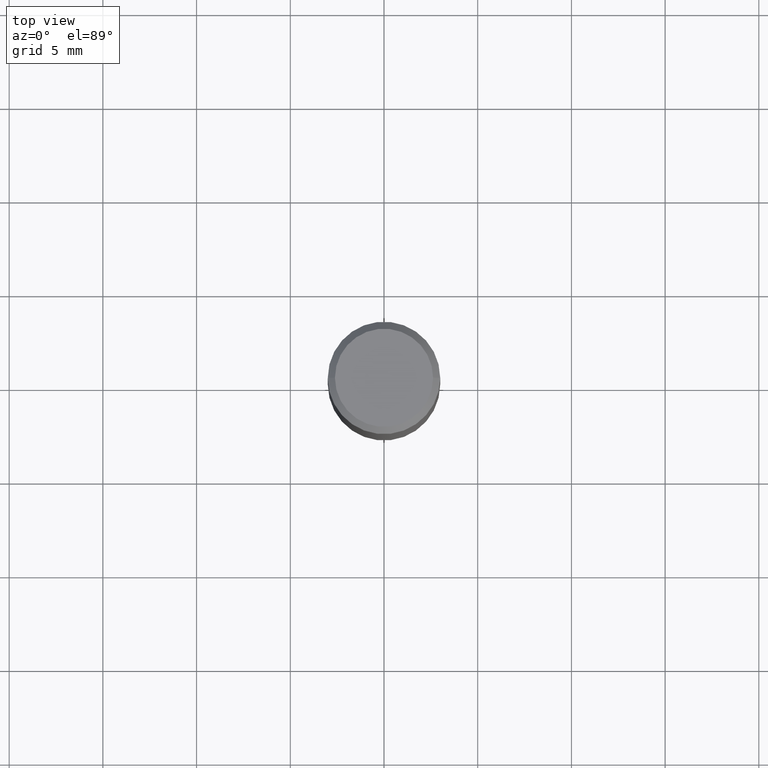
[diagram: clean part render]
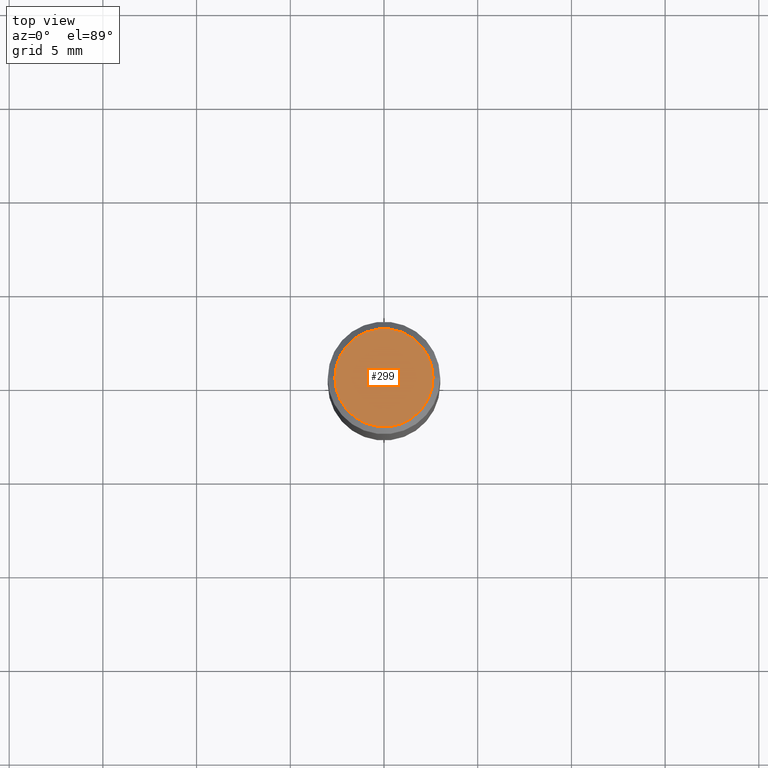
[diagram: same view with one face highlighted and labeled with its STEP entity id]
A machine part, top view. The second image highlights one B-rep face of the part: STEP entity #299.
In plain terms, the highlighted planar face has unit normal (0, -0, -1).
Its self-contained STEP definition (entity closure, byte-faithful):
#22 = DIRECTION ( 'NONE',  ( 1.000000000000000000, -6.982962677686265922E-15, 4.883331232093008327E-29 ) ) ;
#29 = FACE_OUTER_BOUND ( 'NONE', #249, .T. ) ;
#30 = AXIS2_PLACEMENT_3D ( 'NONE', #458, #31, #423 ) ;
#31 = DIRECTION ( 'NONE',  ( 2.438088387897960049E-29, -3.491481338843145188E-15, -1.000000000000000000 ) ) ;
#36 = CIRCLE ( 'NONE', #444, 0.1031000000000000111 ) ;
#37 = CARTESIAN_POINT ( 'NONE',  ( 4.647400995173613138E-45, -6.635256932220833331E-31, -1.900413116462290932E-16 ) ) ;
#38 = VERTEX_POINT ( 'NONE', #82 ) ;
#58 = CARTESIAN_POINT ( 'NONE',  ( 4.647400995173613138E-45, -6.635256932220833331E-31, -1.900413116462290932E-16 ) ) ;
#82 = CARTESIAN_POINT ( 'NONE',  ( 0.1031000000000000111, -7.849571885948552706E-16, -1.900413116462238423E-16 ) ) ;
#147 = ORIENTED_EDGE ( 'NONE', *, *, #218, .T. ) ;
#164 = CIRCLE ( 'NONE', #403, 0.1031000000000000111 ) ;
#169 = PLANE ( 'NONE',  #30 ) ;
#180 = DIRECTION ( 'NONE',  ( -2.445468806185136597E-29, 3.491481338843145583E-15, 1.000000000000000000 ) ) ;
#183 = ORIENTED_EDGE ( 'NONE', *, *, #325, .T. ) ;
#185 = VERTEX_POINT ( 'NONE', #201 ) ;
#201 = CARTESIAN_POINT ( 'NONE',  ( -0.1031000000000000111, 7.461295621107772493E-16, -1.900413116462341961E-16 ) ) ;
#218 = EDGE_CURVE ( 'NONE', #38, #185, #164, .T. ) ;
#249 = EDGE_LOOP ( 'NONE', ( #183, #147 ) ) ;
#299 = ADVANCED_FACE ( 'NONE', ( #29 ), #169, .F. ) ;
#318 = DIRECTION ( 'NONE',  ( 1.000000000000000000, -6.982962677686265922E-15, 4.883331232093008327E-29 ) ) ;
#325 = EDGE_CURVE ( 'NONE', #185, #38, #36, .T. ) ;
#381 = DIRECTION ( 'NONE',  ( -2.445468806185136597E-29, 3.491481338843145583E-15, 1.000000000000000000 ) ) ;
#403 = AXIS2_PLACEMENT_3D ( 'NONE', #58, #381, #22 ) ;
#423 = DIRECTION ( 'NONE',  ( -1.000000000000000000, 6.982962677686265922E-15, -4.876176775795935793E-29 ) ) ;
#444 = AXIS2_PLACEMENT_3D ( 'NONE', #37, #180, #318 ) ;
#458 = CARTESIAN_POINT ( 'NONE',  ( 7.199434520694541042E-16, 0.1031000000000000111, -4.549923818578428559E-16 ) ) ;